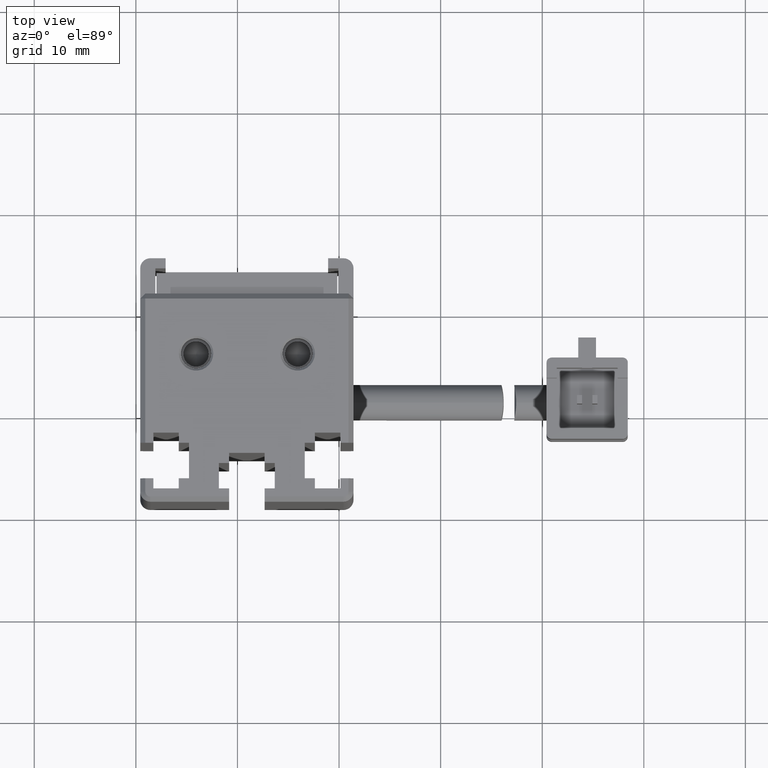
[diagram: clean part render]
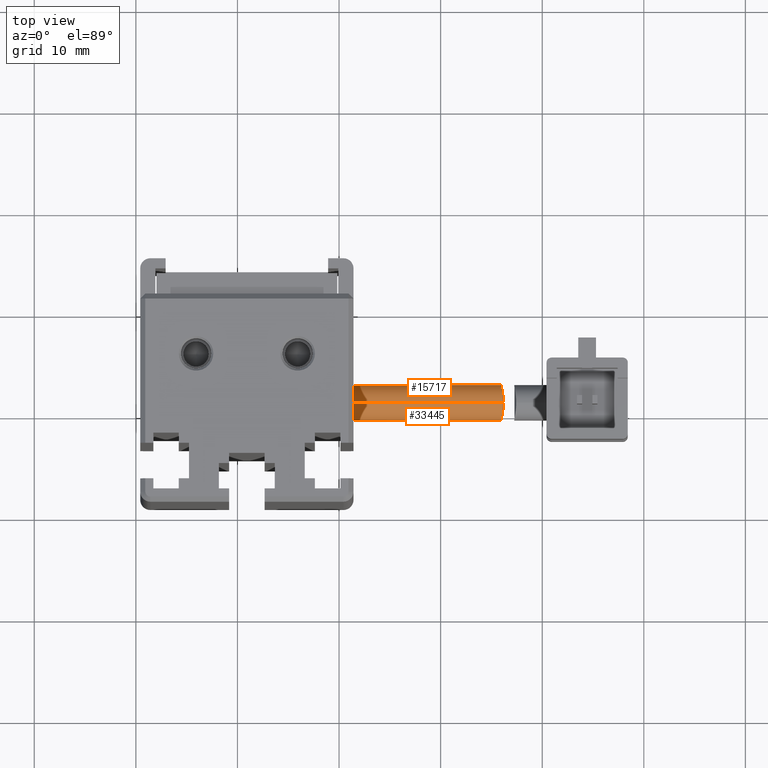
[diagram: same view with one multi-face feature highlighted, each face labeled with its STEP entity id]
A machine part, top view. The highlighted faces form ONE feature: a constant-radius fillet chain: 2 tangent blend faces with common blend radius 1.75 mm. The faces share edges in the B-rep.
Their STEP definitions:
[1] entity #33445 (Cylinder):
#607 = CARTESIAN_POINT ( 'NONE',  ( 65.97280863591524300, 19.79670929018426400, -134.9961834804894400 ) ) ;
#867 = CARTESIAN_POINT ( 'NONE',  ( 66.07810076657452200, 20.42231531355382800, -134.0593477912411200 ) ) ;
#1921 = VERTEX_POINT ( 'NONE', #35392 ) ;
#3399 = CARTESIAN_POINT ( 'NONE',  ( 51.42537974683536100, 21.49073232304853300, -137.2000000000000200 ) ) ;
#3464 = CARTESIAN_POINT ( 'NONE',  ( 65.98599951797790200, 19.74101606756723400, -135.6810619186153100 ) ) ;
#3721 = CARTESIAN_POINT ( 'NONE',  ( 66.08432375002451000, 20.09174899000161200, -136.5256856806185200 ) ) ;
#3841 = CARTESIAN_POINT ( 'NONE',  ( 66.10631114892369500, 20.61124924129202500, -133.9327861123732100 ) ) ;
#3975 = CARTESIAN_POINT ( 'NONE',  ( 66.13767043200717000, 20.42254390752244200, -136.8408778375836900 ) ) ;
#4010 = FACE_OUTER_BOUND ( 'NONE', #17121, .T. ) ;
#6827 = CARTESIAN_POINT ( 'NONE',  ( 66.16909918599569100, 21.25857035714853900, -133.7000000000000500 ) ) ;
#7206 = EDGE_CURVE ( 'NONE', #31650, #32092, #14725, .T. ) ;
#7799 = ORIENTED_EDGE ( 'NONE', *, *, #38779, .F. ) ;
#7807 = DIRECTION ( 'NONE',  ( -1.000000000000000000, -3.304235192336770000E-015, -8.579261317967046800E-031 ) ) ;
#10090 = CARTESIAN_POINT ( 'NONE',  ( 51.42537974683536100, 21.49073232304850800, -133.7000000000000200 ) ) ;
#11207 = VERTEX_POINT ( 'NONE', #26420 ) ;
#12568 = CARTESIAN_POINT ( 'NONE',  ( 66.06345805648925300, 20.33446100659061200, -134.1313984176798900 ) ) ;
#13543 = CARTESIAN_POINT ( 'NONE',  ( 71.42537974683536100, 21.49073232304857600, -137.2000000000000200 ) ) ;
#14725 = CIRCLE ( 'NONE', #20057, 1.750000000000001600 ) ;
#15819 = CARTESIAN_POINT ( 'NONE',  ( 66.12460940034066000, 20.33289083467249400, -136.7671338581188000 ) ) ;
#16930 = LINE ( 'NONE', #13543, #19281 ) ;
#17121 = EDGE_LOOP ( 'NONE', ( #7799, #32594, #31833, #38152 ) ) ;
#17805 = CARTESIAN_POINT ( 'NONE',  ( 66.20621967933267600, 21.37467942352718700, -137.1999999999999900 ) ) ;
#18431 = CARTESIAN_POINT ( 'NONE',  ( 51.42537974683536100, 21.49073232304850800, -135.4500000000000200 ) ) ;
#18592 = CARTESIAN_POINT ( 'NONE',  ( 66.16909918599567700, 21.49073232304855800, -133.7000000000000200 ) ) ;
#18719 = CARTESIAN_POINT ( 'NONE',  ( 66.19496276555766200, 21.03633168118914700, -137.1438409074873400 ) ) ;
#18784 = CARTESIAN_POINT ( 'NONE',  ( 71.42537974683536100, 21.49073232304857600, -133.7000000000000200 ) ) ;
#19241 = DIRECTION ( 'NONE',  ( -1.000000000000000000, -3.304235192336770000E-015, -8.579261317967046800E-031 ) ) ;
#19281 = VECTOR ( 'NONE', #7807, 1000.000000000000000 ) ;
#20057 = AXIS2_PLACEMENT_3D ( 'NONE', #18431, #33491, #30613 ) ;
#21356 = CARTESIAN_POINT ( 'NONE',  ( 66.05492220013285000, 19.96182696463409200, -136.3312831179887000 ) ) ;
#21477 = CARTESIAN_POINT ( 'NONE',  ( 65.97252778088122200, 19.74059244864715300, -135.3377076749584100 ) ) ;
#21741 = CARTESIAN_POINT ( 'NONE',  ( 65.97065476178855200, 19.75195885195751100, -135.2212418624716300 ) ) ;
#23136 = CYLINDRICAL_SURFACE ( 'NONE', #32934, 1.750000000000001600 ) ;
#23464 = B_SPLINE_CURVE_WITH_KNOTS ( 'NONE', 3,
 ( #35781, #17805, #24710, #18719, #27747, #33759, #30777, #3975, #15819, #3721, #21356, #33643, #3464, #21477, #21741, #607, #24457, #33903, #30499, #12568, #867, #3841, #36836, #24325, #6827, #18592 ),
 .UNSPECIFIED., .F., .F.,
 ( 4, 2, 2, 2, 2, 2, 2, 2, 2, 2, 2, 2, 4 ),
 ( 2.081668171172168500E-017, 0.0003431607499797082300, 0.0006863214999593956500, 0.001029482249939083300, 0.001372642999918770500, 0.002058964499878157900, 0.002745285999837544900, 0.003088446749817196100, 0.003431607499796847300, 0.004117928999756225600, 0.004461089749735919700, 0.004804250499715612100, 0.005490571999674979600 ),
 .UNSPECIFIED. ) ;
#24325 = CARTESIAN_POINT ( 'NONE',  ( 66.15457117823017100, 21.02994706544156900, -133.7463689643743100 ) ) ;
#24457 = CARTESIAN_POINT ( 'NONE',  ( 65.97674975456151000, 19.82986165832780000, -134.8867513380907900 ) ) ;
#24710 = CARTESIAN_POINT ( 'NONE',  ( 66.20390138008309600, 21.26062417110182400, -137.1885704476976000 ) ) ;
#25484 = EDGE_CURVE ( 'NONE', #11207, #31650, #35937, .T. ) ;
#25487 = CARTESIAN_POINT ( 'NONE',  ( 71.42537974683536100, 21.49073232304857600, -135.4500000000000200 ) ) ;
#26420 = CARTESIAN_POINT ( 'NONE',  ( 66.16909918599567700, 21.49073232304855800, -133.7000000000000200 ) ) ;
#27747 = CARTESIAN_POINT ( 'NONE',  ( 66.18822953472890400, 20.92490558211200700, -137.1099719075165000 ) ) ;
#30499 = CARTESIAN_POINT ( 'NONE',  ( 66.02121001940464900, 20.09098345961682200, -134.3748734586274900 ) ) ;
#30613 = DIRECTION ( 'NONE',  ( 0.0000000000000000000, 0.0000000000000000000, 1.000000000000000000 ) ) ;
#30777 = CARTESIAN_POINT ( 'NONE',  ( 66.16091813003936300, 20.61255936552064200, -136.9680184145168500 ) ) ;
#31156 = DIRECTION ( 'NONE',  ( 0.0000000000000000000, 0.0000000000000000000, 1.000000000000000000 ) ) ;
#31650 = VERTEX_POINT ( 'NONE', #10090 ) ;
#31833 = ORIENTED_EDGE ( 'NONE', *, *, #25484, .T. ) ;
#32092 = VERTEX_POINT ( 'NONE', #3399 ) ;
#32594 = ORIENTED_EDGE ( 'NONE', *, *, #33301, .T. ) ;
#32934 = AXIS2_PLACEMENT_3D ( 'NONE', #25487, #19241, #31156 ) ;
#33301 = EDGE_CURVE ( 'NONE', #1921, #11207, #23464, .T. ) ;
#33445 = ADVANCED_FACE ( 'NONE', ( #4010 ), #23136, .T. ) ;
#33491 = DIRECTION ( 'NONE',  ( 1.000000000000000000, 3.304235192336770000E-015, 8.579261317967046800E-031 ) ) ;
#33643 = CARTESIAN_POINT ( 'NONE',  ( 66.00588664361791300, 19.78737048454823700, -135.9112699601981000 ) ) ;
#33759 = CARTESIAN_POINT ( 'NONE',  ( 66.17117312302134700, 20.71299618687269700, -137.0218756747875700 ) ) ;
#33903 = CARTESIAN_POINT ( 'NONE',  ( 65.99681660540062500, 19.96193764474621100, -134.5678160555280000 ) ) ;
#34028 = VECTOR ( 'NONE', #37016, 1000.000000000000000 ) ;
#35392 = CARTESIAN_POINT ( 'NONE',  ( 66.20621967933266200, 21.49073232304855800, -137.1999999999999900 ) ) ;
#35781 = CARTESIAN_POINT ( 'NONE',  ( 66.20621967933266200, 21.49073232304855800, -137.1999999999999900 ) ) ;
#35937 = LINE ( 'NONE', #18784, #34028 ) ;
#36836 = CARTESIAN_POINT ( 'NONE',  ( 66.11999622660434300, 20.71354430800201000, -133.8778917883745400 ) ) ;
#37016 = DIRECTION ( 'NONE',  ( -1.000000000000000000, -3.304235192336770000E-015, -8.579261317967046800E-031 ) ) ;
#38152 = ORIENTED_EDGE ( 'NONE', *, *, #7206, .T. ) ;
#38779 = EDGE_CURVE ( 'NONE', #1921, #32092, #16930, .T. ) ;
[2] entity #15717 (Cylinder):
#688 = CARTESIAN_POINT ( 'NONE',  ( 66.08400798320374700, 22.89150646391434300, -136.5237529889950000 ) ) ;
#1022 = DIRECTION ( 'NONE',  ( 0.0000000000000000000, 0.0000000000000000000, 1.000000000000000000 ) ) ;
#1514 = CARTESIAN_POINT ( 'NONE',  ( 71.42537974683536100, 21.49073232304857600, -135.4500000000000200 ) ) ;
#1921 = VERTEX_POINT ( 'NONE', #35392 ) ;
#3399 = CARTESIAN_POINT ( 'NONE',  ( 51.42537974683536100, 21.49073232304853300, -137.2000000000000200 ) ) ;
#3678 = CARTESIAN_POINT ( 'NONE',  ( 66.13743220877901800, 22.56061969415858900, -136.8395406144934700 ) ) ;
#3798 = CARTESIAN_POINT ( 'NONE',  ( 65.98855349268929200, 23.22932324687323200, -135.6799364845565500 ) ) ;
#3923 = CARTESIAN_POINT ( 'NONE',  ( 66.12003836585687100, 22.26761315901731600, -133.8777216974355900 ) ) ;
#4448 = EDGE_CURVE ( 'NONE', #32092, #31650, #33693, .T. ) ;
#5592 = ORIENTED_EDGE ( 'NONE', *, *, #4448, .T. ) ;
#5897 = FACE_OUTER_BOUND ( 'NONE', #21338, .T. ) ;
#6773 = CARTESIAN_POINT ( 'NONE',  ( 66.20621967933264800, 21.72282869244823500, -137.1999999999999600 ) ) ;
#6912 = CARTESIAN_POINT ( 'NONE',  ( 65.98134991565429200, 23.24078982580402600, -135.5637194744111600 ) ) ;
#7807 = DIRECTION ( 'NONE',  ( -1.000000000000000000, -3.304235192336770000E-015, -8.579261317967046800E-031 ) ) ;
#7894 = AXIS2_PLACEMENT_3D ( 'NONE', #19462, #16810, #16283 ) ;
#9382 = CARTESIAN_POINT ( 'NONE',  ( 66.16909918599564800, 21.60680859003607800, -133.6999999999999600 ) ) ;
#9516 = CARTESIAN_POINT ( 'NONE',  ( 65.96799919059766600, 23.24061665153340400, -135.2199166147517800 ) ) ;
#9643 = CARTESIAN_POINT ( 'NONE',  ( 66.06343873949747100, 22.64709544356476600, -134.1315777397997200 ) ) ;
#9777 = CARTESIAN_POINT ( 'NONE',  ( 66.20621967933266200, 21.49073232304855800, -137.1999999999999900 ) ) ;
#9906 = CARTESIAN_POINT ( 'NONE',  ( 66.17113496622533800, 22.26883414955935700, -137.0216747521505200 ) ) ;
#10090 = CARTESIAN_POINT ( 'NONE',  ( 51.42537974683536100, 21.49073232304850800, -133.7000000000000200 ) ) ;
#11207 = VERTEX_POINT ( 'NONE', #26420 ) ;
#11465 = B_SPLINE_CURVE_WITH_KNOTS ( 'NONE', 3,
 ( #12649, #9382, #24278, #30342, #18401, #3923, #27439, #33466, #9643, #12393, #36652, #15515, #9516, #6912, #3798, #30454, #27834, #36519, #688, #33856, #3678, #27573, #9906, #24672, #6773, #9777 ),
 .UNSPECIFIED., .F., .F.,
 ( 4, 2, 2, 2, 2, 2, 2, 2, 2, 2, 2, 2, 4 ),
 ( 0.005490571999674979600, 0.005833718808239048500, 0.006176865616803117400, 0.006520012425367186300, 0.006863159233931255200, 0.007549452851059330500, 0.008235746468187404200, 0.008578893276751483500, 0.008922040085315562800, 0.009608333702443790800, 0.009951480511007904800, 0.01029462731957201900, 0.01098092093670028300 ),
 .UNSPECIFIED. ) ;
#12393 = CARTESIAN_POINT ( 'NONE',  ( 66.02159805663031000, 22.88828370669178000, -134.3725020553220900 ) ) ;
#12578 = AXIS2_PLACEMENT_3D ( 'NONE', #1514, #12865, #1022 ) ;
#12649 = CARTESIAN_POINT ( 'NONE',  ( 66.16909918599567700, 21.49073232304855800, -133.7000000000000200 ) ) ;
#12865 = DIRECTION ( 'NONE',  ( -1.000000000000000000, -3.304235192336770000E-015, -8.579261317967046800E-031 ) ) ;
#13324 = ORIENTED_EDGE ( 'NONE', *, *, #25484, .F. ) ;
#13543 = CARTESIAN_POINT ( 'NONE',  ( 71.42537974683536100, 21.49073232304857600, -137.2000000000000200 ) ) ;
#14139 = ORIENTED_EDGE ( 'NONE', *, *, #38779, .T. ) ;
#15515 = CARTESIAN_POINT ( 'NONE',  ( 65.97024437261939100, 23.19420936625597200, -134.9887505292055900 ) ) ;
#15717 = ADVANCED_FACE ( 'NONE', ( #5897 ), #20886, .T. ) ;
#16283 = DIRECTION ( 'NONE',  ( 0.0000000000000000000, 0.0000000000000000000, 1.000000000000000000 ) ) ;
#16810 = DIRECTION ( 'NONE',  ( 1.000000000000000000, 3.304235192336770000E-015, 8.579261317967046800E-031 ) ) ;
#16930 = LINE ( 'NONE', #13543, #19281 ) ;
#18401 = CARTESIAN_POINT ( 'NONE',  ( 66.14312513808744100, 22.05618387698943300, -133.7899194494976600 ) ) ;
#18784 = CARTESIAN_POINT ( 'NONE',  ( 71.42537974683536100, 21.49073232304857600, -133.7000000000000200 ) ) ;
#19281 = VECTOR ( 'NONE', #7807, 1000.000000000000000 ) ;
#19462 = CARTESIAN_POINT ( 'NONE',  ( 51.42537974683536100, 21.49073232304850800, -135.4500000000000200 ) ) ;
#20886 = CYLINDRICAL_SURFACE ( 'NONE', #12578, 1.750000000000001600 ) ;
#21338 = EDGE_LOOP ( 'NONE', ( #32194, #14139, #5592, #13324 ) ) ;
#24278 = CARTESIAN_POINT ( 'NONE',  ( 66.16564187166542900, 21.72081579437508100, -133.7114329739076800 ) ) ;
#24672 = CARTESIAN_POINT ( 'NONE',  ( 66.19668055208005300, 21.95177912622206800, -137.1536289975071800 ) ) ;
#25484 = EDGE_CURVE ( 'NONE', #11207, #31650, #35937, .T. ) ;
#26420 = CARTESIAN_POINT ( 'NONE',  ( 66.16909918599567700, 21.49073232304855800, -133.7000000000000200 ) ) ;
#27439 = CARTESIAN_POINT ( 'NONE',  ( 66.10664507071447800, 22.36783389789094300, -133.9313779437375400 ) ) ;
#27573 = CARTESIAN_POINT ( 'NONE',  ( 66.16064130294124400, 22.37141064514802100, -136.9665380968415300 ) ) ;
#27834 = CARTESIAN_POINT ( 'NONE',  ( 66.01781632386865800, 23.15157741340437500, -136.0132809039904500 ) ) ;
#30342 = CARTESIAN_POINT ( 'NONE',  ( 66.15272929082431100, 21.94491196028725700, -133.7561066842592900 ) ) ;
#30446 = EDGE_CURVE ( 'NONE', #11207, #1921, #11465, .T. ) ;
#30454 = CARTESIAN_POINT ( 'NONE',  ( 66.00678294115667200, 23.18463344848184700, -135.9041675512315200 ) ) ;
#31650 = VERTEX_POINT ( 'NONE', #10090 ) ;
#32092 = VERTEX_POINT ( 'NONE', #3399 ) ;
#32194 = ORIENTED_EDGE ( 'NONE', *, *, #30446, .T. ) ;
#33466 = CARTESIAN_POINT ( 'NONE',  ( 66.07835221810198300, 22.55760743916209400, -134.0581316121933400 ) ) ;
#33693 = CIRCLE ( 'NONE', #7894, 1.750000000000001600 ) ;
#33856 = CARTESIAN_POINT ( 'NONE',  ( 66.12463420223004100, 22.64847476324764100, -136.7673024940898500 ) ) ;
#34028 = VECTOR ( 'NONE', #37016, 1000.000000000000000 ) ;
#35392 = CARTESIAN_POINT ( 'NONE',  ( 66.20621967933266200, 21.49073232304855800, -137.1999999999999900 ) ) ;
#35937 = LINE ( 'NONE', #18784, #34028 ) ;
#36519 = CARTESIAN_POINT ( 'NONE',  ( 66.05492445293647600, 23.01977546981315800, -136.3316429091015600 ) ) ;
#36652 = CARTESIAN_POINT ( 'NONE',  ( 65.99693793915955100, 23.01894157653051200, -134.5672986979646500 ) ) ;
#37016 = DIRECTION ( 'NONE',  ( -1.000000000000000000, -3.304235192336770000E-015, -8.579261317967046800E-031 ) ) ;
#38779 = EDGE_CURVE ( 'NONE', #1921, #32092, #16930, .T. ) ;